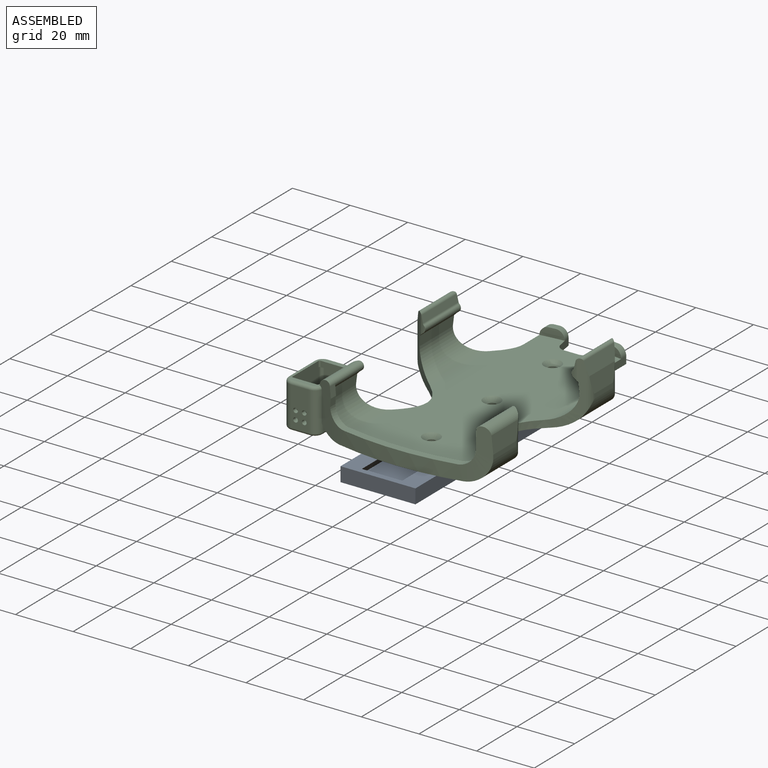
[diagram: assembled view]
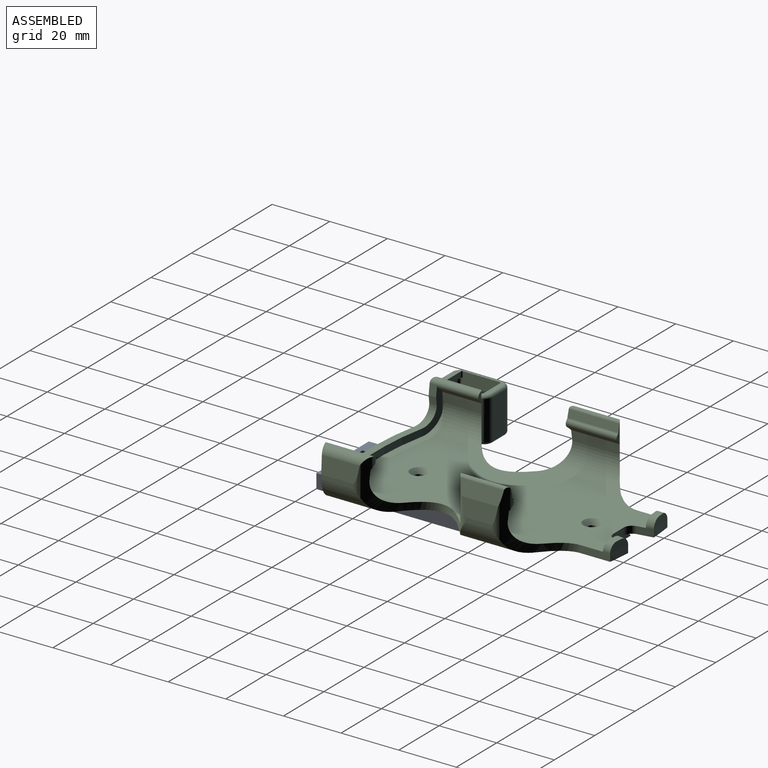
[diagram: assembled view, second angle]
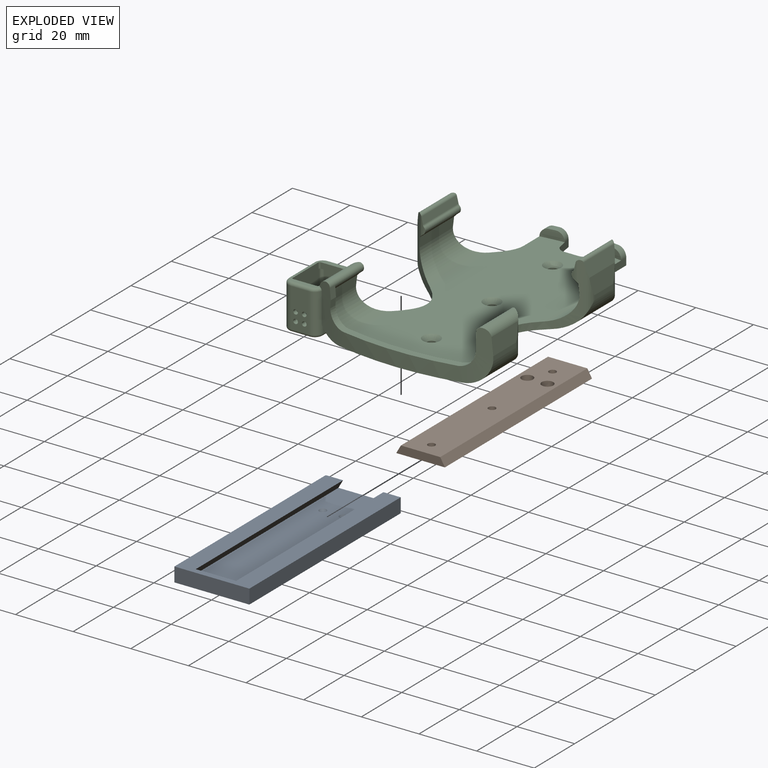
[diagram: exploded view]
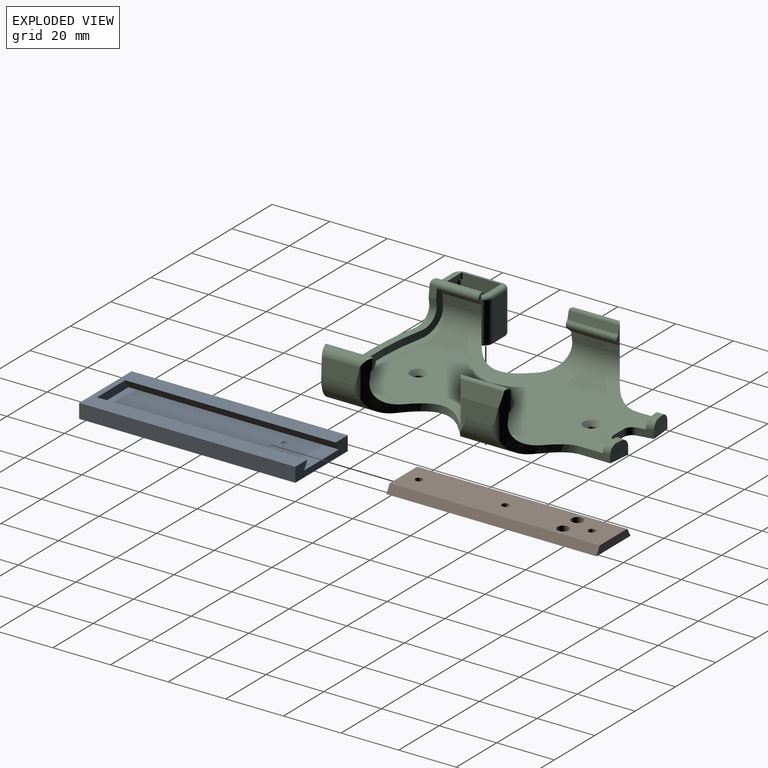
[diagram: exploded view, second angle]
ASSEMBLY  parts=3 mates=2
PART A: 12 faces, bbox 26x75x5 mm
  f0: plane 73x2.8mm, normal (-0.87,0,-0.5), area 236mm2, adj f1,f5,f8,f11
  f1: plane 73x17.23mm, normal (0,0,1), area 1247.9mm2, adj f0,f2,f8,f9,f10,f11
  f2: plane 73x2.8mm, normal (0.87,0,-0.5), area 236mm2, adj f1,f5,f8,f11
  f3: plane 75x26mm, normal (0,0,-1), area 1950mm2, adj f4,f6,f7,f8
  f4: plane 75x5mm, normal (1,0,0), area 375mm2, adj f3,f5,f7,f8
  f5: plane 75x26mm, normal (0,0,1), area 928mm2, adj f0,f2,f4,f6,f7,f8,f11
  f6: plane 75x5mm, normal (-1,0,0), area 375mm2, adj f3,f5,f7,f8
  f7: plane 26x5mm, normal (0,-1,0), area 130mm2, adj f3,f4,f5,f6
  f8: plane 26x5mm, normal (0,1,0), area 86.3mm2, adj f0,f1,f2,f3,f4,f5,f6
  f9: sphere r=1.5mm, area 6.6mm2, adj f1
  f10: sphere r=1.5mm, area 6.6mm2, adj f1
  f11: plane 17.23x2.8mm, normal (0,1,0), area 43.7mm2, adj f0,f1,f2,f5
PART B: 15 faces, bbox 16.9x72.9x2.8 mm
  f0: plane 72.9x16.89mm, normal (0,0,-1), area 1183.1mm2, adj f2,f3,f4,f6,f7,f8,f10,f12
  f1: plane 72.9x13.65mm, normal (0,0,1), area 955.5mm2, adj f2,f3,f4,f5,f6,f7,f8,f9
  f2: plane 72.9x2.8mm, normal (-0.87,0,0.5), area 235.7mm2, adj f0,f1,f4,f14
  f3: plane 72.9x2.8mm, normal (0.87,0,0.5), area 235.7mm2, adj f0,f1,f4,f14
  f4: plane 16.89x2.8mm, normal (0,1,0), area 42.8mm2, adj f0,f1,f2,f3
  f5: cylinder r=2mm len=4mm, axis (0,0,1), area 21.4mm2, adj f1,f13
  f6: cylinder r=1.25mm len=2.8mm, axis (0,0,1), area 22mm2, adj f0,f1
  f7: cylinder r=1.25mm len=2.8mm, axis (0,0,1), area 22mm2, adj f0,f1
  f8: cylinder r=1.25mm len=2.8mm, axis (0,0,1), area 22mm2, adj f0,f1
  f9: cylinder r=2mm len=4mm, axis (0,0,1), area 21.4mm2, adj f1,f11
  f10: cylinder r=2.3mm len=4.6mm, axis (0,0,1), area 15.9mm2, adj f0,f11
  f11: plane 4.6x4.6mm, normal (0,0,-1), area 4.1mm2, adj f9,f10
  f12: cylinder r=2.3mm len=4.6mm, axis (0,0,1), area 15.9mm2, adj f0,f13
  f13: plane 4.6x4.6mm, normal (0,0,-1), area 4.1mm2, adj f5,f12
  f14: plane 16.89x2.8mm, normal (0,-1,0), area 42.8mm2, adj f0,f1,f2,f3
PART C: 140 faces, bbox 71.6x21.6x94.6 mm
  f0: plane 11x7.2mm, normal (0,0,1), area 71.2mm2, adj f14,f101,f103,f104,f105,f106,f132,f133
  f1: plane 13.5x6.2mm, normal (0,0,-1), area 75.7mm2, adj f103,f104,f105,f106,f113,f116,f122,f128
  f2: plane 13.7x13mm, normal (-1,0,0), area 176.1mm2, adj f5,f14,f99,f101,f132,f135,f136,f138
  f3: plane 13.7x13mm, normal (1,0,0), area 176.1mm2, adj f5,f14,f99,f101,f133,f134,f137,f139
  f4: plane 11x7.2mm, normal (0,0,-1), area 79.2mm2, adj f14,f99,f134,f135
  f5: plane 16.7x10.2mm, normal (0,1,0), area 41.1mm2, adj f2,f3,f16,f17,f100,f102,f117,f118
  f6: plane 13.5x12.7mm, normal (1,0,0), area 171.4mm2, adj f113,f114,f120,f131
  f7: plane 13.5x6.2mm, normal (0,0,1), area 83.7mm2, adj f114,f115,f118,f127
  f8: cylinder r=0.8mm len=2.5mm, axis (0,1,0), area 12.6mm2, adj f13,f14
  f9: cylinder r=0.8mm len=2.5mm, axis (0,1,0), area 12.6mm2, adj f13,f14
  f10: cylinder r=0.8mm len=2.5mm, axis (0,1,0), area 12.6mm2, adj f13,f14
  f11: cylinder r=0.8mm len=2.5mm, axis (0,1,0), area 12.6mm2, adj f13,f14
  f12: plane 12.7x2.92mm, normal (-1,0,0), area 37.1mm2, adj f15,f115,f116,f124
  f13: plane 16.7x10.2mm, normal (0,-1,0), area 158.9mm2, adj f8,f9,f10,f11,f124,f125,f126,f127
  f14: plane 15.7x9.2mm, normal (0,1,0), area 135.5mm2, adj f0,f2,f3,f4,f8,f9,f10,f11
  f15: cylinder r=9mm len=22mm, axis (0,0,-1), area 158.4mm2, adj f12,f16,f18,f35,f38,f115,f116
  f16: cylinder r=102.75mm len=60.21mm, axis (0,-1,0), area 401.1mm2, adj f5,f15,f17,f22,f38,f42,f43,f44
  f17: plane 13.16x0.21mm, normal (1,0.09,0), area 2.8mm2, adj f5,f16,f18,f55
  f18: cylinder r=4mm len=14.05mm, axis (0,-1,0), area 9.1mm2, adj f15,f17,f35,f55,f92,f115,f117
  f19: extruded ~32.66x21.55mm, area 171.4mm2, adj f20,f21,f23,f24,f28,f37,f38,f45
  f20: cylinder r=4mm len=14.05mm, axis (0,-1,0), area 32mm2, adj f19,f43,f44,f59,f69,f91
  f21: cylinder r=4.5mm len=3.7mm, axis (0,-1,0), area 4.6mm2, adj f19,f22,f23,f91
  f22: cylinder r=1.5mm len=16.92mm, axis (0,0,-1), area 59.4mm2, adj f16,f21,f23,f74,f78,f91
  f23: cylinder r=8.05mm len=14.17mm, axis (0,0,-1), area 27.9mm2, adj f19,f21,f22,f45,f72,f78
  f24: cylinder r=1mm len=17.51mm, axis (0,0,-1), area 44.5mm2, adj f19,f25,f34,f48,f56,f58,f89,f90
  f25: plane 17.68x2.45mm, normal (0.98,0.22,0), area 44mm2, adj f24,f26,f89,f90
  f26: cylinder r=1mm len=17.7mm, axis (0,0,-1), area 11.2mm2, adj f25,f27,f89,f90
  f27: cylinder r=1.5mm len=17.7mm, axis (0,0,-1), area 47.4mm2, adj f26,f28,f89,f90
  f28: cylinder r=8.05mm len=17.69mm, axis (0,0,-1), area 35.1mm2, adj f19,f27,f34,f49,f89,f90
  f29: cylinder r=8.05mm len=17.69mm, axis (0,0,-1), area 35.1mm2, adj f30,f35,f52,f63,f86,f87
  f30: cylinder r=1.5mm len=17.7mm, axis (0,0,-1), area 47.4mm2, adj f29,f31,f86,f87
  f31: cylinder r=1mm len=17.7mm, axis (0,0,-1), area 11.2mm2, adj f30,f32,f86,f87
  f32: plane 17.68x2.45mm, normal (-0.98,0.22,0), area 44mm2, adj f31,f33,f86,f87
  f33: cylinder r=1mm len=17.51mm, axis (0,0,-1), area 44.5mm2, adj f32,f35,f54,f63,f64,f65,f86,f87
  f34: extruded ~21.55x16.33mm, area 88.8mm2, adj f24,f28,f37,f38,f49,f50,f56,f62
  f35: extruded ~32.66x21.55mm, area 171.4mm2, adj f15,f18,f29,f33,f37,f38,f39,f40
  f36: cylinder r=102.75mm len=7.81mm, axis (0,-1,0), area 39.3mm2, adj f38,f62,f83,f84,f109,f110
  f37: plane 89.32x43.87mm, normal (0,1,0), area 3045.9mm2, adj f19,f34,f35,f39,f46,f50,f51,f60
  f38: plane 94.3x48.66mm, normal (0,-1,0), area 3416.2mm2, adj f15,f16,f19,f34,f35,f36,f60,f61
  f39: cylinder r=8.05mm len=21.26mm, axis (0,0,-1), area 202.1mm2, adj f35,f37,f40,f73,f78
  f40: plane 13.43x3.52mm, normal (-1,-0.09,0), area 47mm2, adj f35,f39,f41,f73
  f41: cylinder r=8.05mm len=14.17mm, axis (0,0,-1), area 27.9mm2, adj f35,f40,f42,f73,f78,f88
  f42: cylinder r=1.5mm len=16.91mm, axis (0,0,-1), area 59mm2, adj f16,f41,f75,f78,f88,f92
  f43: plane 13.16x5.98mm, normal (-1,0.09,0), area 74.6mm2, adj f16,f20,f44,f59
  f44: plane 13.19x0.06mm, normal (-0.98,0.22,0), area 0.8mm2, adj f16,f20,f43,f91
  f45: plane 13.43x3.52mm, normal (1,-0.09,0), area 47mm2, adj f19,f23,f46,f72
  f46: cylinder r=8.05mm len=21.26mm, axis (0,0,-1), area 202.1mm2, adj f19,f37,f45,f72,f78
  f47: plane 12.65x5.98mm, normal (-1,0.09,0), area 68.2mm2, adj f48,f56,f57,f58
  f48: plane 15.15x5.01mm, normal (-0.98,0.22,0), area 72.2mm2, adj f24,f47,f56,f58
  f49: plane 16.85x3.52mm, normal (1,-0.09,0), area 58.8mm2, adj f19,f28,f34,f50
  f50: cylinder r=8.05mm len=28.94mm, axis (0,0,-1), area 262.1mm2, adj f19,f34,f37,f49
  f51: cylinder r=8.05mm len=28.94mm, axis (0,0,-1), area 262.1mm2, adj f35,f37,f52,f63
  f52: plane 16.85x3.52mm, normal (-1,-0.09,0), area 58.8mm2, adj f29,f35,f51,f63
  f53: plane 12.65x5.98mm, normal (1,0.09,0), area 68.2mm2, adj f54,f64,f65,f66
  f54: plane 15.15x5.01mm, normal (0.98,0.22,0), area 72.2mm2, adj f33,f53,f64,f65
  f55: plane 13.19x0.06mm, normal (0.98,0.22,0), area 0.8mm2, adj f16,f17,f18,f92
  f56: cylinder r=4mm len=17.5mm, axis (0,-1,0), area 34.7mm2, adj f24,f34,f47,f48,f57,f67
  f57: plane 8.7x1.57mm, normal (-1,0,0), area 13.6mm2, adj f47,f56,f58,f67
  f58: cylinder r=4mm len=17.5mm, axis (0,-1,0), area 34.7mm2, adj f19,f24,f47,f48,f57,f67
  f59: plane 11.02x1.57mm, normal (-1,0,0), area 17.3mm2, adj f16,f20,f43,f69
  f60: plane 10.27x2.5mm, normal (1,0,0), area 25.7mm2, adj f37,f38,f61,f63,f112
  f61: cylinder r=102.75mm len=7.81mm, axis (0,-1,0), area 39.3mm2, adj f38,f60,f80,f81,f111,f112
  f62: plane 10.27x2.5mm, normal (-1,0,0), area 25.7mm2, adj f34,f36,f37,f38,f109
  f63: extruded ~21.55x16.33mm, area 88.8mm2, adj f29,f33,f37,f38,f51,f52,f60,f65
  f64: cylinder r=4mm len=17.5mm, axis (0,-1,0), area 34.7mm2, adj f33,f35,f53,f54,f66,f68
  f65: cylinder r=4mm len=17.5mm, axis (0,-1,0), area 34.7mm2, adj f33,f53,f54,f63,f66,f68
  f66: plane 8.7x1.57mm, normal (1,0,0), area 13.6mm2, adj f53,f64,f65,f68
  f67: cylinder r=9mm len=26mm, axis (0,0,-1), area 230.5mm2, adj f19,f34,f38,f56,f57,f58
  f68: cylinder r=9mm len=26mm, axis (0,0,-1), area 230.5mm2, adj f35,f38,f63,f64,f65,f66
  f69: cylinder r=9mm len=22mm, axis (0,0,-1), area 217.1mm2, adj f16,f19,f20,f38,f59
  f70: cylinder r=5.55mm len=5.55mm, axis (0,0,1), area 22.1mm2, adj f16,f74,f77,f78
  f71: cylinder r=5.55mm len=5.55mm, axis (0,0,1), area 22.1mm2, adj f16,f76,f77,f78
  f72: plane 6.86x0.59mm, normal (0,0,1), area 2.8mm2, adj f23,f45,f46,f78
  f73: plane 6.86x0.59mm, normal (0,0,1), area 2.8mm2, adj f39,f40,f41,f78
  f74: plane 6.24x2.61mm, normal (1,0.02,0), area 16.1mm2, adj f16,f22,f70,f78
  f75: plane 3.69x2.68mm, normal (-1,0.1,0), area 9.6mm2, adj f16,f42,f76,f78
  f76: plane 2.67x2.64mm, normal (-1,-0.09,0), area 6.9mm2, adj f16,f71,f75,f78
  f77: plane 39.4x4.45mm, normal (0,1,0), area 99.1mm2, adj f16,f70,f71,f78
  f78: cylinder r=100.25mm len=54.33mm, axis (0,-1,0), area 170.8mm2, adj f22,f23,f37,f39,f41,f42,f46,f70
  f79: cylinder r=100.25mm len=8.25mm, axis (0,-1,0), area 21mm2, adj f37,f81,f111,f112
  f80: plane 5.32x2.5mm, normal (-0.98,0,0.17), area 13.5mm2, adj f37,f38,f61,f107,f111
  f81: plane 2.7x2.24mm, normal (0,1,0), area 5.1mm2, adj f61,f79,f111,f112
  f82: cylinder r=100.25mm len=8.25mm, axis (0,-1,0), area 21mm2, adj f37,f84,f109,f110
  f83: plane 5.32x2.5mm, normal (0.98,0,0.17), area 13.5mm2, adj f36,f37,f38,f108,f110
  f84: plane 2.7x2.24mm, normal (0,1,0), area 5.1mm2, adj f36,f82,f109,f110
  f85: plane 4.97x2.5mm, normal (0,0,1), area 12.4mm2, adj f37,f38,f107,f108
  f86: cylinder r=4.5mm len=6.86mm, axis (0,-1,0), area 6.4mm2, adj f29,f30,f31,f32,f33,f63
  f87: cylinder r=4.5mm len=6.86mm, axis (0,-1,0), area 6.4mm2, adj f29,f30,f31,f32,f33,f35
  f88: cylinder r=4.5mm len=3.7mm, axis (0,-1,0), area 4.6mm2, adj f35,f41,f42,f92
  f89: cylinder r=4.5mm len=6.86mm, axis (0,-1,0), area 6.4mm2, adj f19,f24,f25,f26,f27,f28
  f90: cylinder r=4.5mm len=6.86mm, axis (0,-1,0), area 6.4mm2, adj f24,f25,f26,f27,f28,f34
  f91: cylinder r=2.99mm len=16.4mm, axis (0,0,1), area 59.5mm2, adj f16,f19,f20,f21,f22,f44
  f92: cylinder r=2.99mm len=16.4mm, axis (0,0,1), area 59.5mm2, adj f16,f18,f35,f42,f55,f88
  f93: cylinder r=1.5mm len=3mm, axis (0,1,0), area 9.4mm2, adj f38,f94
  f94: cone r=1.5mm half-angle=45deg, axis (0,1,0), area 30mm2, adj f37,f93
  f95: cylinder r=1.5mm len=3mm, axis (0,1,0), area 9.4mm2, adj f38,f96
  f96: cone r=1.5mm half-angle=45deg, axis (0,1,0), area 30mm2, adj f37,f95
  f97: cylinder r=1.5mm len=3mm, axis (0,1,0), area 9.4mm2, adj f38,f98
  f98: cone r=1.5mm half-angle=45deg, axis (0,1,0), area 30mm2, adj f37,f97
  f99: plane 9.2x1.5mm, normal (0,-1,0), area 8.9mm2, adj f2,f3,f4,f100,f134,f135,f138,f139
  f100: plane 8.2x2mm, normal (0,0,-1), area 16.4mm2, adj f5,f99,f138,f139
  f101: plane 9.2x1.5mm, normal (0,-1,0), area 8.9mm2, adj f0,f2,f3,f102,f132,f133,f136,f137
  f102: plane 8.2x2mm, normal (0,0,1), area 16.4mm2, adj f5,f101,f136,f137
  f103: cylinder r=0.8mm len=1.6mm, axis (0,0,-1), area 7.5mm2, adj f0,f1
  f104: cylinder r=0.8mm len=1.6mm, axis (0,0,-1), area 7.5mm2, adj f0,f1
  f105: cylinder r=0.8mm len=1.6mm, axis (0,0,-1), area 7.5mm2, adj f0,f1
  f106: cylinder r=0.8mm len=1.6mm, axis (0,0,-1), area 7.5mm2, adj f0,f1
  f107: cylinder r=3mm len=2.95mm, axis (0,1,0), area 10.5mm2, adj f37,f38,f80,f85
  f108: cylinder r=3mm len=2.95mm, axis (0,-1,0), area 10.5mm2, adj f37,f38,f83,f85
  f109: cylinder r=3mm len=3mm, axis (0,0,-1), area 12.1mm2, adj f36,f62,f82,f84
  f110: cylinder r=3mm len=3.44mm, axis (-0.17,0,0.98), area 11.8mm2, adj f36,f82,f83,f84
  f111: cylinder r=3mm len=3.44mm, axis (-0.17,0,-0.98), area 11.8mm2, adj f61,f79,f80,f81
  f112: cylinder r=3mm len=3mm, axis (0,0,1), area 12.1mm2, adj f60,f61,f79,f81
  f113: cylinder r=3mm len=13.5mm, axis (0,1,0), area 63.6mm2, adj f1,f6,f121,f130
  f114: cylinder r=3mm len=13.5mm, axis (0,-1,0), area 63.6mm2, adj f6,f7,f119,f129
  f115: cylinder r=3mm len=13.5mm, axis (0,1,0), area 53.4mm2, adj f7,f12,f15,f18,f117,f125
  f116: cylinder r=3mm len=13.5mm, axis (0,-1,0), area 55.4mm2, adj f1,f12,f15,f16,f123,f126
  f117: torus R=2mm, axis (0,-1,0), area 5.5mm2, adj f5,f18,f115,f118
  f118: cylinder r=1mm len=6.2mm, axis (-1,0,0), area 9.7mm2, adj f5,f7,f117,f119
  f119: torus R=2mm, axis (0,-1,0), area 6.5mm2, adj f5,f114,f118,f120
  f120: cylinder r=1mm len=12.7mm, axis (0,0,1), area 19.9mm2, adj f5,f6,f119,f121
  f121: torus R=2mm, axis (0,-1,0), area 6.5mm2, adj f5,f113,f120,f122
  f122: cylinder r=1mm len=6.2mm, axis (1,0,0), area 9.7mm2, adj f1,f5,f121,f123
  f123: torus R=2mm, axis (0,-1,0), area 5.5mm2, adj f5,f16,f116,f122
  f124: cylinder r=1mm len=12.7mm, axis (0,0,1), area 19.9mm2, adj f12,f13,f125,f126
  f125: torus R=2mm, axis (0,-1,0), area 6.5mm2, adj f13,f115,f124,f127
  f126: torus R=2mm, axis (0,-1,0), area 6.5mm2, adj f13,f116,f124,f128
  f127: cylinder r=1mm len=6.2mm, axis (1,0,0), area 9.7mm2, adj f7,f13,f125,f129
  f128: cylinder r=1mm len=6.2mm, axis (-1,0,0), area 9.7mm2, adj f1,f13,f126,f130
  f129: torus R=2mm, axis (0,-1,0), area 6.5mm2, adj f13,f114,f127,f131
  f130: torus R=2mm, axis (0,-1,0), area 6.5mm2, adj f13,f113,f128,f131
  f131: cylinder r=1mm len=12.7mm, axis (0,0,-1), area 19.9mm2, adj f6,f13,f129,f130
  f132: cylinder r=1mm len=11mm, axis (0,1,0), area 17.3mm2, adj f0,f2,f14,f101
  f133: cylinder r=1mm len=11mm, axis (0,-1,0), area 17.3mm2, adj f0,f3,f14,f101
  f134: cylinder r=1mm len=11mm, axis (0,1,0), area 17.3mm2, adj f3,f4,f14,f99
  f135: cylinder r=1mm len=11mm, axis (0,-1,0), area 17.3mm2, adj f2,f4,f14,f99
  f136: cylinder r=0.5mm len=2mm, axis (0,1,0), area 1.6mm2, adj f2,f5,f101,f102
  f137: cylinder r=0.5mm len=2mm, axis (0,-1,0), area 1.6mm2, adj f3,f5,f101,f102
  f138: cylinder r=0.5mm len=2mm, axis (0,-1,0), area 1.6mm2, adj f2,f5,f99,f100
  f139: cylinder r=0.5mm len=2mm, axis (0,1,0), area 1.6mm2, adj f3,f5,f99,f100
PLACE A at identity
PLACE B t=(0,19.01,0)mm
PLACE C rot(axis=(0,0.71,0.71),180deg) t=(0,19.01,7.65)mm
MATE slider A.f11 <-> B.f14  axis (0,1,0) through (0,-35.5,5)mm
MATE fastened C.f97 <-> B.f7  axis (0,0,-1) through (0,49.01,5.1)mm
